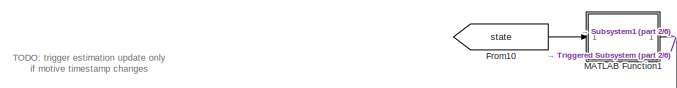
[diagram: root canvas - part 1/6, top center region]
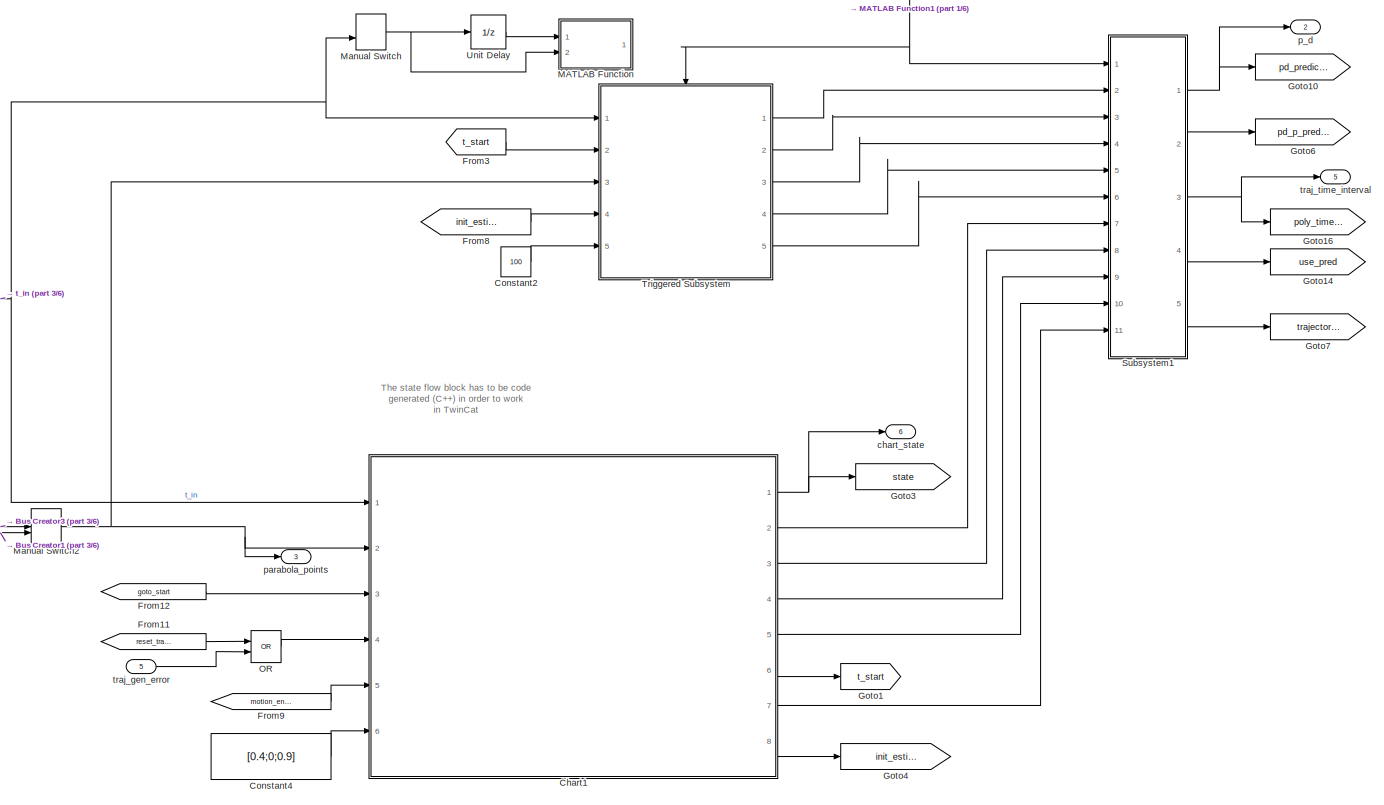
[diagram: root canvas - part 2/6, top center region]
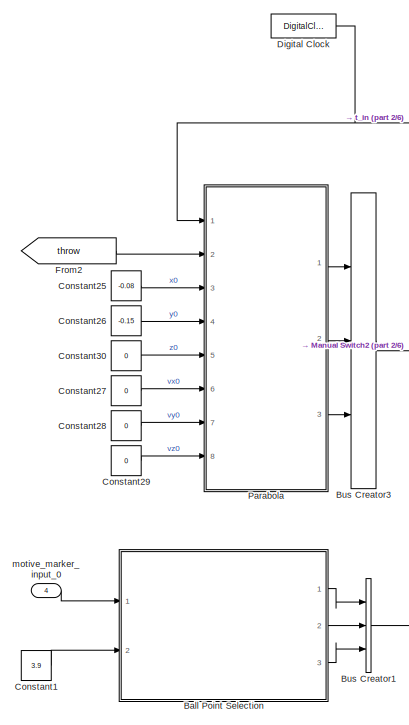
[diagram: root canvas - part 3/6, middle left region]
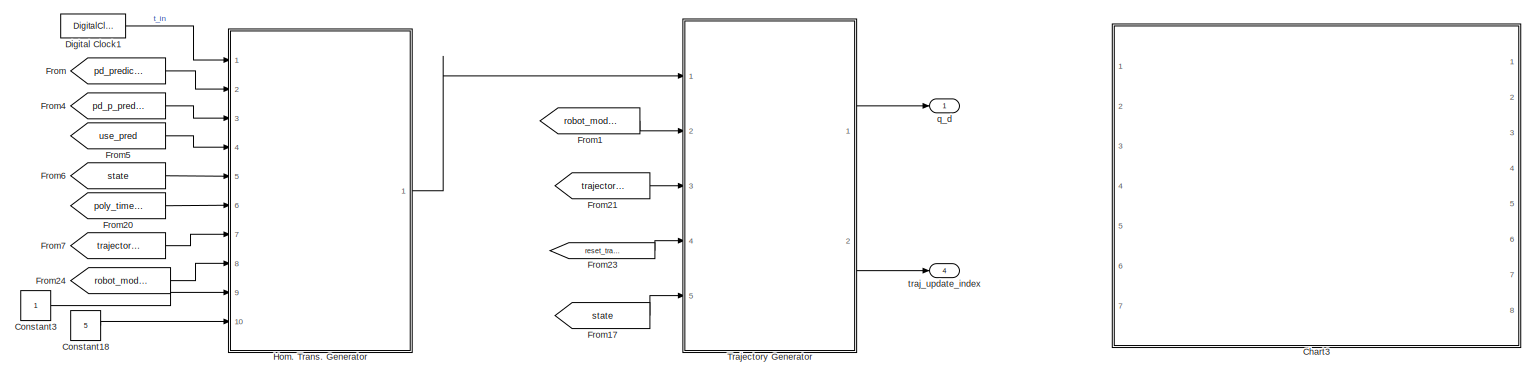
[diagram: root canvas - part 4/6, full width, middle band]
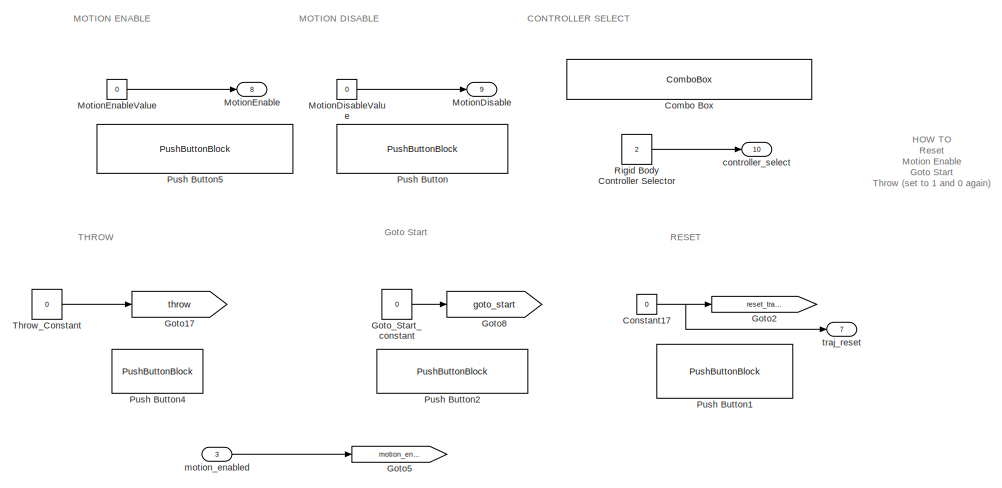
[diagram: root canvas - part 5/6, bottom right region]
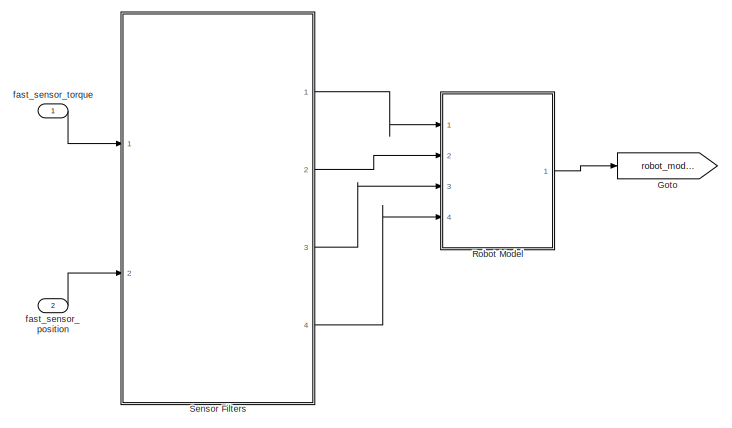
[diagram: root canvas - part 6/6, bottom left region]
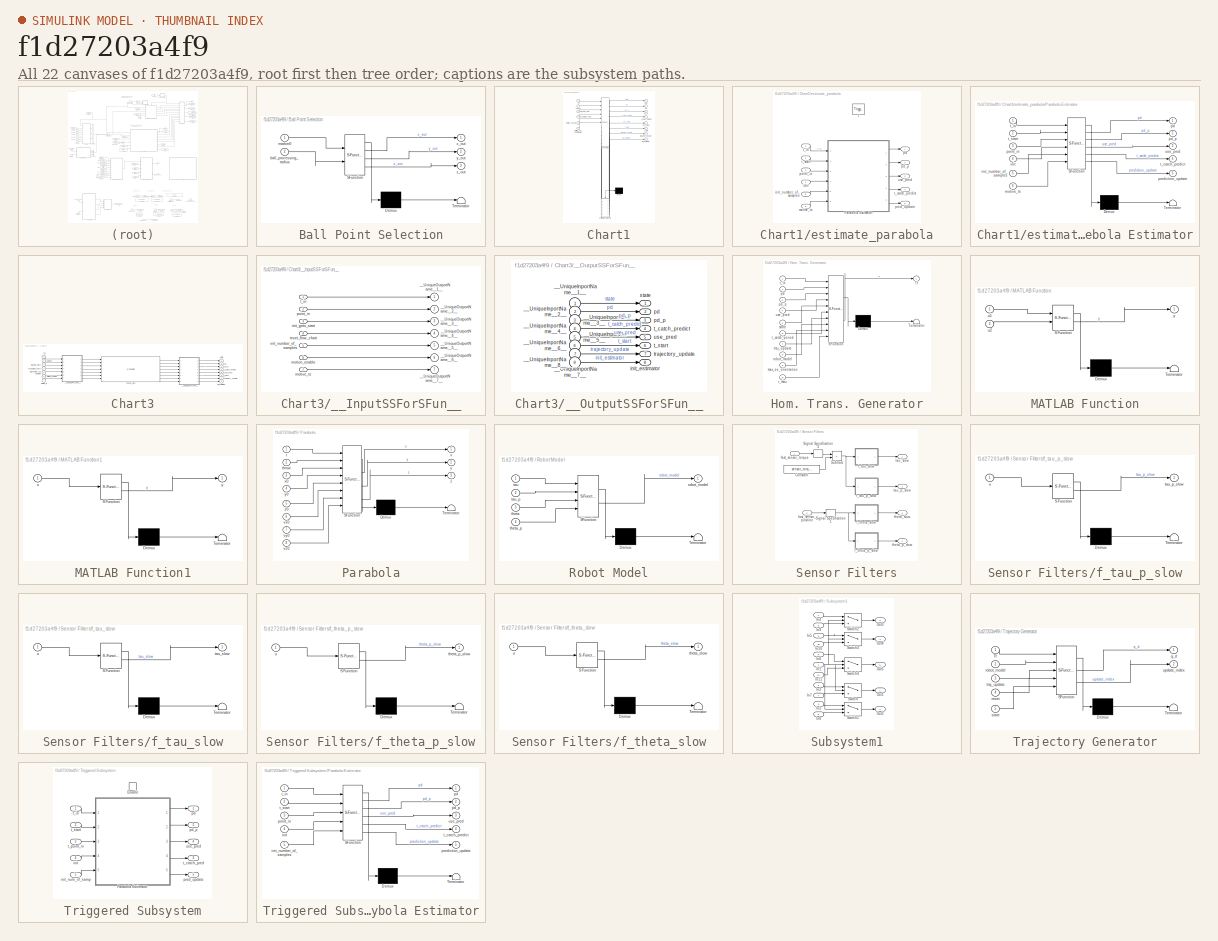
[diagram: thumbnail index - all 22 canvases of the model, root first then tree order]
MODEL slx_f1d27203a4f9
KIND model
CONFIG AbsTol = auto
CONFIG EnableMultiTasking = off
CONFIG FixedStep = param_controller.T_a
CONFIG InitFcn = iiwa_joint_trajectoryfollowingcontrol_rigid_parameters;
CONFIG MaxStep = auto
CONFIG MinStep = auto
CONFIG RelTol = 1e-3
CONFIG SampleTimeConstraint = Unconstrained
CONFIG Solver = FixedStepAuto
CONFIG SolverName = FixedStepAuto
CONFIG StartTime = 0.0
CONFIG StopTime = 10.0
BLOCK [SubSystem] Ball Point Selection
  ErrorFcn = Stateflow.Translate.translate
  PermitHierarchicalResolution = ExplicitOnly
  Ports = [2, 3]
  RequestExecContextInheritance = off
  SFBlockType = MATLAB Function
  TreatAsAtomicUnit = on
BLOCK [Demux] Ball Point Selection/ Demux 
  Outputs = 1
  Ports = [1, 1]
BLOCK [S-Function] Ball Point Selection/ SFunction 
  EnableBusSupport = on
  FunctionName = sf_sfun
  PortCounts = [2 4]
  Ports = [2, 4]
  SFcnIsStateOwnerBlock = off
  SFunctionDeploymentMode = off
  Tag = Stateflow S-Function 2
BLOCK [Terminator] Ball Point Selection/ Terminator 
BLOCK [Inport] Ball Point Selection/ball_processing_radius
  Port = 2
BLOCK [Inport] Ball Point Selection/marker0
BLOCK [Outport] Ball Point Selection/x_out
  VectorParamsAs1DForOutWhenUnconnected = off
BLOCK [Outport] Ball Point Selection/y_out
  Port = 2
  VectorParamsAs1DForOutWhenUnconnected = off
BLOCK [Outport] Ball Point Selection/z_out
  Port = 3
  VectorParamsAs1DForOutWhenUnconnected = off
BLOCK [BusCreator] Bus Creator1
  DisplayOption = bar
  InheritFromInputs = on
  Inputs = 3
  Ports = [3, 1]
BLOCK [BusCreator] Bus Creator3
  DisplayOption = bar
  InheritFromInputs = on
  Inputs = 3
  Ports = [3, 1]
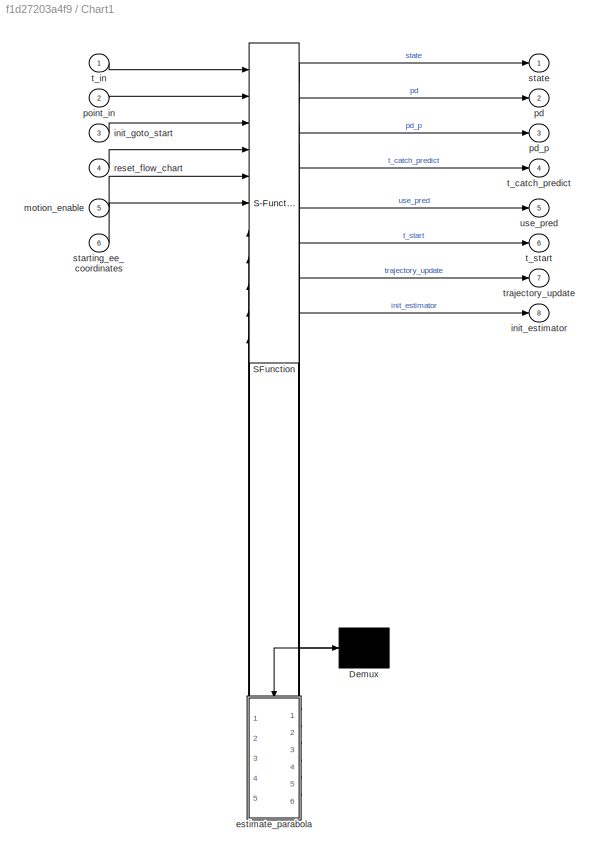
BLOCK [SubSystem] Chart1
  ErrorFcn = Stateflow.Translate.translate
  PermitHierarchicalResolution = ExplicitOnly
  Ports = [6, 8]
  RequestExecContextInheritance = off
  SFBlockType = Chart
  TreatAsAtomicUnit = on
BLOCK [Demux] Chart1/ Demux 
  Outputs = 1
  Ports = [1, 1]
BLOCK [S-Function] Chart1/ SFunction 
  EnableBusSupport = on
  FunctionName = sf_sfun
  Parameters = positions
  PortCounts = [11 15]
  Ports = [11, 15]
  SFcnIsStateOwnerBlock = off
  SFunctionDeploymentMode = off
  Tag = Stateflow S-Function 10
BLOCK [SubSystem] Chart1/estimate_parabola
  Commented = on
  Ports = [6, 5, 0, 1]
  PreDeleteFcn = Stateflow.SLINSF.SimulinkMan.removePreDeleteFcn
  RequestExecContextInheritance = off
  UndoDeleteFcn = Stateflow.SLINSF.SimulinkMan.restorePreDeleteFcn
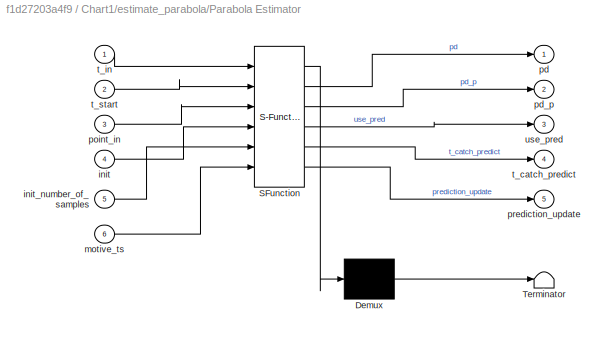
BLOCK [SubSystem] Chart1/estimate_parabola/Parabola Estimator
  ErrorFcn = Stateflow.Translate.translate
  PermitHierarchicalResolution = ExplicitOnly
  Ports = [6, 5]
  RequestExecContextInheritance = off
  SFBlockType = MATLAB Function
  TreatAsAtomicUnit = on
BLOCK [Demux] Chart1/estimate_parabola/Parabola Estimator/ Demux 
  Outputs = 1
  Ports = [1, 1]
BLOCK [S-Function] Chart1/estimate_parabola/Parabola Estimator/ SFunction 
  EnableBusSupport = off
  FunctionName = sf_sfun
  Parameters = estimator_init_struct,height_of_catch,timing
  PortCounts = [6 6]
  Ports = [6, 6]
  SFcnIsStateOwnerBlock = off
  SFunctionDeploymentMode = off
  Tag = Stateflow S-Function 11
BLOCK [Terminator] Chart1/estimate_parabola/Parabola Estimator/ Terminator 
BLOCK [Inport] Chart1/estimate_parabola/Parabola Estimator/init
  Port = 4
BLOCK [Inport] Chart1/estimate_parabola/Parabola Estimator/init_number_of_samples
  Port = 5
BLOCK [Inport] Chart1/estimate_parabola/Parabola Estimator/motive_ts
  Port = 6
BLOCK [Outport] Chart1/estimate_parabola/Parabola Estimator/pd
  VectorParamsAs1DForOutWhenUnconnected = off
BLOCK [Outport] Chart1/estimate_parabola/Parabola Estimator/pd_p
  Port = 2
  VectorParamsAs1DForOutWhenUnconnected = off
BLOCK [Inport] Chart1/estimate_parabola/Parabola Estimator/point_in
  Port = 3
BLOCK [Outport] Chart1/estimate_parabola/Parabola Estimator/prediction_update
  Port = 5
BLOCK [Outport] Chart1/estimate_parabola/Parabola Estimator/t_catch_predict
  Port = 4
  VectorParamsAs1DForOutWhenUnconnected = off
BLOCK [Inport] Chart1/estimate_parabola/Parabola Estimator/t_in
BLOCK [Inport] Chart1/estimate_parabola/Parabola Estimator/t_start
  Port = 2
BLOCK [Outport] Chart1/estimate_parabola/Parabola Estimator/use_pred
  Port = 3
  VectorParamsAs1DForOutWhenUnconnected = off
BLOCK [TriggerPort] Chart1/estimate_parabola/f
  CopyFcn = Stateflow.SLINSF.SimulinkMan.removeBlockPreDeleteFcn
  Ports = []
  PreDeleteFcn = Stateflow.SLINSF.SimulinkMan.unsafePredeleteFcn
  StatesWhenEnabling = held
  TriggerType = function-call
  VariantControl = (inherit)
BLOCK [Inport] Chart1/estimate_parabola/init
  OutDataTypeStr = double
  Port = 4
  PortDimensions = 1
  SignalType = real
  VarSizeSig = No
BLOCK [Inport] Chart1/estimate_parabola/init_number_of_samples
  OutDataTypeStr = double
  Port = 5
  PortDimensions = 1
  SignalType = real
  VarSizeSig = No
BLOCK [Inport] Chart1/estimate_parabola/motive_ts
  OutDataTypeStr = double
  Port = 6
  PortDimensions = 1
  SignalType = real
  VarSizeSig = No
BLOCK [Outport] Chart1/estimate_parabola/pd
  PortDimensions = 3
BLOCK [Outport] Chart1/estimate_parabola/pd_p
  Port = 2
  PortDimensions = 3
BLOCK [Inport] Chart1/estimate_parabola/point_in
  OutDataTypeStr = double
  Port = 3
  PortDimensions = 3
  SignalType = real
  VarSizeSig = No
BLOCK [Outport] Chart1/estimate_parabola/pred_update
  Port = 5
BLOCK [Outport] Chart1/estimate_parabola/t_catch_predict
  Port = 4
  PortDimensions = [1,2]
BLOCK [Inport] Chart1/estimate_parabola/t_in
  OutDataTypeStr = double
  PortDimensions = 1
  SignalType = real
  VarSizeSig = No
BLOCK [Inport] Chart1/estimate_parabola/t_start
  OutDataTypeStr = double
  Port = 2
  PortDimensions = 1
  SignalType = real
  VarSizeSig = No
BLOCK [Outport] Chart1/estimate_parabola/use_pred
  Port = 3
  PortDimensions = 1
BLOCK [Outport] Chart1/init_estimator
  Port = 8
  VectorParamsAs1DForOutWhenUnconnected = off
BLOCK [Inport] Chart1/init_goto_start
  Port = 3
BLOCK [Inport] Chart1/motion_enable
  Port = 5
BLOCK [Outport] Chart1/pd
  Port = 2
BLOCK [Outport] Chart1/pd_p
  Port = 3
BLOCK [Inport] Chart1/point_in
  Port = 2
BLOCK [Inport] Chart1/reset_flow_chart
  Port = 4
BLOCK [Inport] Chart1/starting_ee_coordinates
  Port = 6
BLOCK [Outport] Chart1/state
BLOCK [Outport] Chart1/t_catch_predict
  Port = 4
BLOCK [Inport] Chart1/t_in
BLOCK [Outport] Chart1/t_start
  Port = 6
BLOCK [Outport] Chart1/trajectory_update
  Port = 7
BLOCK [Outport] Chart1/use_pred
  Port = 5
BLOCK [SubSystem] Chart3
  Commented = on
  Ports = [7, 8]
  RequestExecContextInheritance = off
BLOCK [S-Function] Chart3/Chart2_sfcn
  CopyFcn = if ~strcmp(get_param(gcb,'Linkstatus'),'none') && ...\n~strcmp(get_param(gcb,'Linkstatus'),'implicit')      \n  set_param(gcb,'LinkStatus','none');                \nend
  EnableBusSupport = off
  FunctionName = Chart2_sf
  Ports = [7, 8]
  SFcnIsStateOwnerBlock = off
  SFunctionDeploymentMode = off
BLOCK [SubSystem] Chart3/__InputSSForSFun__
  PermitHierarchicalResolution = ExplicitOnly
  Ports = [7, 7]
  RequestExecContextInheritance = off
BLOCK [Outport] Chart3/__InputSSForSFun__/__UniqueOutportName__1__
  VectorParamsAs1DForOutWhenUnconnected = off
BLOCK [Outport] Chart3/__InputSSForSFun__/__UniqueOutportName__2__
  Port = 2
  VectorParamsAs1DForOutWhenUnconnected = off
BLOCK [Outport] Chart3/__InputSSForSFun__/__UniqueOutportName__3__
  Port = 3
  VectorParamsAs1DForOutWhenUnconnected = off
BLOCK [Outport] Chart3/__InputSSForSFun__/__UniqueOutportName__4__
  Port = 4
  VectorParamsAs1DForOutWhenUnconnected = off
BLOCK [Outport] Chart3/__InputSSForSFun__/__UniqueOutportName__5__
  Port = 5
  VectorParamsAs1DForOutWhenUnconnected = off
BLOCK [Outport] Chart3/__InputSSForSFun__/__UniqueOutportName__6__
  Port = 6
  VectorParamsAs1DForOutWhenUnconnected = off
BLOCK [Outport] Chart3/__InputSSForSFun__/__UniqueOutportName__7__
  Port = 7
  VectorParamsAs1DForOutWhenUnconnected = off
BLOCK [Inport] Chart3/__InputSSForSFun__/init_goto_start
  Port = 3
BLOCK [Inport] Chart3/__InputSSForSFun__/init_number_of_samples
  Port = 5
BLOCK [Inport] Chart3/__InputSSForSFun__/motion_enable
  Port = 6
BLOCK [Inport] Chart3/__InputSSForSFun__/motive_ts
  Port = 7
BLOCK [Inport] Chart3/__InputSSForSFun__/point_in
  Port = 2
BLOCK [Inport] Chart3/__InputSSForSFun__/reset_flow_chart
  Port = 4
BLOCK [Inport] Chart3/__InputSSForSFun__/t_in
BLOCK [SubSystem] Chart3/__OutputSSForSFun__
  PermitHierarchicalResolution = ExplicitOnly
  Ports = [8, 8]
  RequestExecContextInheritance = off
BLOCK [Inport] Chart3/__OutputSSForSFun__/__UniqueInportName__1__
BLOCK [Inport] Chart3/__OutputSSForSFun__/__UniqueInportName__2__
  Port = 2
BLOCK [Inport] Chart3/__OutputSSForSFun__/__UniqueInportName__3__
  Port = 3
BLOCK [Inport] Chart3/__OutputSSForSFun__/__UniqueInportName__4__
  Port = 4
BLOCK [Inport] Chart3/__OutputSSForSFun__/__UniqueInportName__5__
  Port = 5
BLOCK [Inport] Chart3/__OutputSSForSFun__/__UniqueInportName__6__
  Port = 6
BLOCK [Inport] Chart3/__OutputSSForSFun__/__UniqueInportName__7__
  Port = 7
BLOCK [Inport] Chart3/__OutputSSForSFun__/__UniqueInportName__8__
  Port = 8
BLOCK [Outport] Chart3/__OutputSSForSFun__/init_estimator
  Port = 8
  VectorParamsAs1DForOutWhenUnconnected = off
BLOCK [Outport] Chart3/__OutputSSForSFun__/pd
  Port = 2
BLOCK [Outport] Chart3/__OutputSSForSFun__/pd_p
  Port = 3
BLOCK [Outport] Chart3/__OutputSSForSFun__/state
BLOCK [Outport] Chart3/__OutputSSForSFun__/t_catch_predict
  Port = 4
BLOCK [Outport] Chart3/__OutputSSForSFun__/t_start
  Port = 6
BLOCK [Outport] Chart3/__OutputSSForSFun__/trajectory_update
  Port = 7
BLOCK [Outport] Chart3/__OutputSSForSFun__/use_pred
  Port = 5
BLOCK [Outport] Chart3/init_estimator
  Port = 8
  VectorParamsAs1DForOutWhenUnconnected = off
BLOCK [Inport] Chart3/init_goto_start
  Port = 3
BLOCK [Inport] Chart3/init_number_of_samples
  Port = 5
BLOCK [Inport] Chart3/motion_enable
  Port = 6
BLOCK [Inport] Chart3/motive_ts
  Port = 7
BLOCK [Outport] Chart3/pd
  Port = 2
BLOCK [Outport] Chart3/pd_p
  Port = 3
BLOCK [Inport] Chart3/point_in
  Port = 2
BLOCK [Inport] Chart3/reset_flow_chart
  Port = 4
BLOCK [Outport] Chart3/state
BLOCK [Outport] Chart3/t_catch_predict
  Port = 4
BLOCK [Inport] Chart3/t_in
BLOCK [Outport] Chart3/t_start
  Port = 6
BLOCK [Outport] Chart3/trajectory_update
  Port = 7
BLOCK [Outport] Chart3/use_pred
  Port = 5
BLOCK [ComboBox] Combo Box
  SelectedLabel = 2: Joint-based E/A Linearization
BLOCK [Constant] Constant1
  Value = 3.9
BLOCK [Constant] Constant17
  Value = 0
BLOCK [Constant] Constant18
  Value = 5
BLOCK [Constant] Constant2
  Value = 100
BLOCK [Constant] Constant25
  Value = -0.08
BLOCK [Constant] Constant26
  Value = -0.15
BLOCK [Constant] Constant27
  Value = 0
BLOCK [Constant] Constant28
  Value = 0
BLOCK [Constant] Constant29
  Value = 0
BLOCK [Constant] Constant3
BLOCK [Constant] Constant30
  Value = 0
BLOCK [Constant] Constant4
  Value = [0.4;0;0.9]
BLOCK [DigitalClock] Digital Clock
  SampleTime = timing.T_optitrack
BLOCK [DigitalClock] Digital Clock1
  SampleTime = timing.T_optiTask
BLOCK [From] From
  GotoTag = pd_predicted
BLOCK [From] From1
  GotoTag = robot_model
BLOCK [From] From10
  GotoTag = state
BLOCK [From] From11
  GotoTag = reset_trajectory
BLOCK [From] From12
  GotoTag = goto_start
BLOCK [From] From17
  GotoTag = state
BLOCK [From] From2
  GotoTag = throw
BLOCK [From] From20
  GotoTag = poly_timepoints
BLOCK [From] From21
  GotoTag = trajectory_update
BLOCK [From] From23
  GotoTag = reset_trajectory
BLOCK [From] From24
  GotoTag = robot_model
BLOCK [From] From3
  GotoTag = t_start
BLOCK [From] From4
  GotoTag = pd_p_predicted
BLOCK [From] From5
  GotoTag = use_pred
BLOCK [From] From6
  GotoTag = state
BLOCK [From] From7
  GotoTag = trajectory_update
BLOCK [From] From8
  GotoTag = init_estimator
BLOCK [From] From9
  GotoTag = motion_enabled
BLOCK [Goto] Goto
  GotoTag = robot_model
BLOCK [Goto] Goto1
  GotoTag = t_start
BLOCK [Goto] Goto10
  GotoTag = pd_predicted
BLOCK [Goto] Goto14
  GotoTag = use_pred
BLOCK [Goto] Goto16
  GotoTag = poly_timepoints
BLOCK [Goto] Goto17
  GotoTag = throw
BLOCK [Goto] Goto2
  GotoTag = reset_trajectory
BLOCK [Goto] Goto3
  GotoTag = state
BLOCK [Goto] Goto4
  GotoTag = init_estimator
BLOCK [Goto] Goto5
  GotoTag = motion_enabled
BLOCK [Goto] Goto6
  GotoTag = pd_p_predicted
BLOCK [Goto] Goto7
  GotoTag = trajectory_update
BLOCK [Goto] Goto8
  GotoTag = goto_start
BLOCK [Constant] Goto_Start_constant
  Value = 0
BLOCK [SubSystem] Hom. Trans. Generator
  ErrorFcn = Stateflow.Translate.translate
  PermitHierarchicalResolution = ExplicitOnly
  Ports = [10, 1]
  RequestExecContextInheritance = off
  SFBlockType = MATLAB Function
  TreatAsAtomicUnit = on
BLOCK [Demux] Hom. Trans. Generator/ Demux 
  Outputs = 1
  Ports = [1, 1]
BLOCK [S-Function] Hom. Trans. Generator/ SFunction 
  EnableBusSupport = on
  FunctionName = sf_sfun
  PortCounts = [10 2]
  Ports = [10, 2]
  SFcnIsStateOwnerBlock = off
  SFunctionDeploymentMode = off
  Tag = Stateflow S-Function 8
BLOCK [Terminator] Hom. Trans. Generator/ Terminator 
BLOCK [Outport] Hom. Trans. Generator/Tf
BLOCK [Inport] Hom. Trans. Generator/max_ee_orientation
  Port = 9
BLOCK [Inport] Hom. Trans. Generator/pd
  Port = 2
BLOCK [Inport] Hom. Trans. Generator/pd_p
  Port = 3
BLOCK [Inport] Hom. Trans. Generator/r_max
  Port = 10
BLOCK [Inport] Hom. Trans. Generator/robot_model
  Port = 8
BLOCK [Inport] Hom. Trans. Generator/state
  Port = 5
BLOCK [Inport] Hom. Trans. Generator/t_catch_period
  Port = 6
BLOCK [Inport] Hom. Trans. Generator/t_in
BLOCK [Inport] Hom. Trans. Generator/traj_update
  Port = 7
BLOCK [Inport] Hom. Trans. Generator/use_pred
  Port = 4
BLOCK [SubSystem] MATLAB Function
  Commented = on
  ErrorFcn = Stateflow.Translate.translate
  PermitHierarchicalResolution = ExplicitOnly
  Ports = [2, 1]
  RequestExecContextInheritance = off
  SFBlockType = MATLAB Function
  TreatAsAtomicUnit = on
BLOCK [Demux] MATLAB Function/ Demux 
  Outputs = 1
  Ports = [1, 1]
BLOCK [S-Function] MATLAB Function/ SFunction 
  EnableBusSupport = on
  FunctionName = sf_sfun
  PortCounts = [2 2]
  Ports = [2, 2]
  SFcnIsStateOwnerBlock = off
  SFunctionDeploymentMode = off
  Tag = Stateflow S-Function 5
BLOCK [Terminator] MATLAB Function/ Terminator 
BLOCK [Inport] MATLAB Function/u1
BLOCK [Inport] MATLAB Function/u2
  Port = 2
BLOCK [Outport] MATLAB Function/y
  VectorParamsAs1DForOutWhenUnconnected = off
BLOCK [SubSystem] MATLAB Function1
  ErrorFcn = Stateflow.Translate.translate
  PermitHierarchicalResolution = ExplicitOnly
  Ports = [1, 1]
  RequestExecContextInheritance = off
  SFBlockType = MATLAB Function
  TreatAsAtomicUnit = on
BLOCK [Demux] MATLAB Function1/ Demux 
  Outputs = 1
  Ports = [1, 1]
BLOCK [S-Function] MATLAB Function1/ SFunction 
  EnableBusSupport = on
  FunctionName = sf_sfun
  PortCounts = [1 2]
  Ports = [1, 2]
  SFcnIsStateOwnerBlock = off
  SFunctionDeploymentMode = off
  Tag = Stateflow S-Function 9
BLOCK [Terminator] MATLAB Function1/ Terminator 
BLOCK [Inport] MATLAB Function1/u
BLOCK [Outport] MATLAB Function1/y
  VectorParamsAs1DForOutWhenUnconnected = off
BLOCK [ManualSwitch] Manual Switch
  Commented = on
BLOCK [ManualSwitch] Manual Switch2
BLOCK [Outport] MotionDisable
  Port = 9
  VectorParamsAs1DForOutWhenUnconnected = off
BLOCK [Constant] MotionDisableValue
  Value = 0
BLOCK [Outport] MotionEnable
  Port = 8
  VectorParamsAs1DForOutWhenUnconnected = off
BLOCK [Constant] MotionEnableValue
  Value = 0
BLOCK [Logic] OR
  AllPortsSameDT = off
  IconShape = distinctive
  Operator = OR
  OutDataTypeStr = boolean
  Ports = [2, 1]
BLOCK [SubSystem] Parabola
  ErrorFcn = Stateflow.Translate.translate
  PermitHierarchicalResolution = ExplicitOnly
  Ports = [8, 3]
  RequestExecContextInheritance = off
  SFBlockType = MATLAB Function
  TreatAsAtomicUnit = on
BLOCK [Demux] Parabola/ Demux 
  Outputs = 1
  Ports = [1, 1]
BLOCK [S-Function] Parabola/ SFunction 
  EnableBusSupport = on
  FunctionName = sf_sfun
  Parameters = optitrack_data,param_controller,timing
  PortCounts = [8 4]
  Ports = [8, 4]
  SFcnIsStateOwnerBlock = off
  SFunctionDeploymentMode = off
  Tag = Stateflow S-Function 1
BLOCK [Terminator] Parabola/ Terminator 
BLOCK [Inport] Parabola/t
BLOCK [Inport] Parabola/throw
  Port = 2
BLOCK [Inport] Parabola/vx0
  Port = 6
BLOCK [Inport] Parabola/vy0
  Port = 7
BLOCK [Inport] Parabola/vz0
  Port = 8
BLOCK [Outport] Parabola/x
  VectorParamsAs1DForOutWhenUnconnected = off
BLOCK [Inport] Parabola/x0
  Port = 3
BLOCK [Outport] Parabola/y
  Port = 2
  VectorParamsAs1DForOutWhenUnconnected = off
BLOCK [Inport] Parabola/y0
  Port = 4
BLOCK [Outport] Parabola/z
  Port = 3
BLOCK [Inport] Parabola/z0
  Port = 5
BLOCK [PushButtonBlock] Push Button
  ButtonText = Motion disable
BLOCK [PushButtonBlock] Push Button1
  ButtonText = Reset Trajectory
BLOCK [PushButtonBlock] Push Button2
  ButtonText = Goto Start
BLOCK [PushButtonBlock] Push Button4
  ButtonText = Throw
BLOCK [PushButtonBlock] Push Button5
  ButtonText = Motion enable
BLOCK [Constant] Rigid Body Controller Selector
  OutDataTypeStr = uint32
  Value = 2
BLOCK [SubSystem] Robot Model
  ErrorFcn = Stateflow.Translate.translate
  PermitHierarchicalResolution = ExplicitOnly
  Ports = [4, 1]
  RequestExecContextInheritance = off
  SFBlockType = MATLAB Function
  TreatAsAtomicUnit = on
BLOCK [Demux] Robot Model/ Demux 
  Outputs = 1
  Ports = [1, 1]
BLOCK [S-Function] Robot Model/ SFunction 
  EnableBusSupport = on
  FunctionName = sf_sfun
  Parameters = param_controller,param_robot
  PortCounts = [4 2]
  Ports = [4, 2]
  SFcnIsStateOwnerBlock = off
  SFunctionDeploymentMode = off
  Tag = Stateflow S-Function 16
BLOCK [Terminator] Robot Model/ Terminator 
BLOCK [Outport] Robot Model/robot_model
  VectorParamsAs1DForOutWhenUnconnected = off
BLOCK [Inport] Robot Model/tau
BLOCK [Inport] Robot Model/tau_p
  Port = 2
BLOCK [Inport] Robot Model/theta
  Port = 3
BLOCK [Inport] Robot Model/theta_p
  Port = 4
BLOCK [SubSystem] Sensor Filters
  Ports = [2, 4]
  RequestExecContextInheritance = off
BLOCK [Constant] Sensor Filters/Constant
  Value = sensor_torque_offset
BLOCK [SignalSpecification] Sensor Filters/Signal Specification1
  Dimensions = 7
BLOCK [SignalSpecification] Sensor Filters/Signal Specification3
  Dimensions = 7
BLOCK [Sum] Sensor Filters/Subtract
  IconShape = rectangular
  Inputs = +-
  Ports = [2, 1]
BLOCK [SubSystem] Sensor Filters/f_tau_p_slow
  ErrorFcn = Stateflow.Translate.translate
  PermitHierarchicalResolution = ExplicitOnly
  Ports = [1, 1]
  RequestExecContextInheritance = off
  SFBlockType = MATLAB Function
  TreatAsAtomicUnit = on
BLOCK [Demux] Sensor Filters/f_tau_p_slow/ Demux 
  Outputs = 1
  Ports = [1, 1]
BLOCK [S-Function] Sensor Filters/f_tau_p_slow/ SFunction 
  EnableBusSupport = on
  FunctionName = sf_sfun
  Parameters = filter_tau_p_slow_T_1,param_controller
  PortCounts = [1 2]
  Ports = [1, 2]
  SFcnIsStateOwnerBlock = off
  SFunctionDeploymentMode = off
  Tag = Stateflow S-Function 22
BLOCK [Terminator] Sensor Filters/f_tau_p_slow/ Terminator 
BLOCK [Outport] Sensor Filters/f_tau_p_slow/tau_p_slow
  VectorParamsAs1DForOutWhenUnconnected = off
BLOCK [Inport] Sensor Filters/f_tau_p_slow/u
BLOCK [SubSystem] Sensor Filters/f_tau_slow
  ErrorFcn = Stateflow.Translate.translate
  PermitHierarchicalResolution = ExplicitOnly
  Ports = [1, 1]
  RequestExecContextInheritance = off
  SFBlockType = MATLAB Function
  TreatAsAtomicUnit = on
BLOCK [Demux] Sensor Filters/f_tau_slow/ Demux 
  Outputs = 1
  Ports = [1, 1]
BLOCK [S-Function] Sensor Filters/f_tau_slow/ SFunction 
  EnableBusSupport = on
  FunctionName = sf_sfun
  Parameters = filter_tau_slow_T_1,param_controller
  PortCounts = [1 2]
  Ports = [1, 2]
  SFcnIsStateOwnerBlock = off
  SFunctionDeploymentMode = off
  Tag = Stateflow S-Function 12
BLOCK [Terminator] Sensor Filters/f_tau_slow/ Terminator 
BLOCK [Outport] Sensor Filters/f_tau_slow/tau_slow
  VectorParamsAs1DForOutWhenUnconnected = off
BLOCK [Inport] Sensor Filters/f_tau_slow/u
BLOCK [SubSystem] Sensor Filters/f_theta_p_slow
  ErrorFcn = Stateflow.Translate.translate
  PermitHierarchicalResolution = ExplicitOnly
  Ports = [1, 1]
  RequestExecContextInheritance = off
  SFBlockType = MATLAB Function
  TreatAsAtomicUnit = on
BLOCK [Demux] Sensor Filters/f_theta_p_slow/ Demux 
  Outputs = 1
  Ports = [1, 1]
BLOCK [S-Function] Sensor Filters/f_theta_p_slow/ SFunction 
  EnableBusSupport = on
  FunctionName = sf_sfun
  Parameters = filter_theta_p_slow_T_1,param_controller
  PortCounts = [1 2]
  Ports = [1, 2]
  SFcnIsStateOwnerBlock = off
  SFunctionDeploymentMode = off
  Tag = Stateflow S-Function 23
BLOCK [Terminator] Sensor Filters/f_theta_p_slow/ Terminator 
BLOCK [Outport] Sensor Filters/f_theta_p_slow/theta_p_slow
  VectorParamsAs1DForOutWhenUnconnected = off
BLOCK [Inport] Sensor Filters/f_theta_p_slow/u
BLOCK [SubSystem] Sensor Filters/f_theta_slow
  ErrorFcn = Stateflow.Translate.translate
  PermitHierarchicalResolution = ExplicitOnly
  Ports = [1, 1]
  RequestExecContextInheritance = off
  SFBlockType = MATLAB Function
  TreatAsAtomicUnit = on
BLOCK [Demux] Sensor Filters/f_theta_slow/ Demux 
  Outputs = 1
  Ports = [1, 1]
BLOCK [S-Function] Sensor Filters/f_theta_slow/ SFunction 
  EnableBusSupport = on
  FunctionName = sf_sfun
  Parameters = filter_theta_slow_T_1,param_controller
  PortCounts = [1 2]
  Ports = [1, 2]
  SFcnIsStateOwnerBlock = off
  SFunctionDeploymentMode = off
  Tag = Stateflow S-Function 21
BLOCK [Terminator] Sensor Filters/f_theta_slow/ Terminator 
BLOCK [Outport] Sensor Filters/f_theta_slow/theta_slow
  VectorParamsAs1DForOutWhenUnconnected = off
BLOCK [Inport] Sensor Filters/f_theta_slow/u
BLOCK [Inport] Sensor Filters/fast_sensor_position
  Port = 2
BLOCK [Inport] Sensor Filters/fast_sensor_torque
BLOCK [Outport] Sensor Filters/tau_p_slow
  Port = 2
  VectorParamsAs1DForOutWhenUnconnected = off
BLOCK [Outport] Sensor Filters/tau_slow
  VectorParamsAs1DForOutWhenUnconnected = off
BLOCK [Outport] Sensor Filters/theta_p_slow
  Port = 4
  VectorParamsAs1DForOutWhenUnconnected = off
BLOCK [Outport] Sensor Filters/theta_slow
  Port = 3
  VectorParamsAs1DForOutWhenUnconnected = off
BLOCK [SubSystem] Subsystem1
  Ports = [11, 5]
  RequestExecContextInheritance = off
BLOCK [Inport] Subsystem1/In1
BLOCK [Inport] Subsystem1/In10
  Port = 10
BLOCK [Inport] Subsystem1/In11
  Port = 11
BLOCK [Inport] Subsystem1/In2
  Port = 2
BLOCK [Inport] Subsystem1/In3
  Port = 3
BLOCK [Inport] Subsystem1/In4
  Port = 4
BLOCK [Inport] Subsystem1/In5
  Port = 5
BLOCK [Inport] Subsystem1/In6
  Port = 6
BLOCK [Inport] Subsystem1/In7
  Port = 7
BLOCK [Inport] Subsystem1/In8
  Port = 8
BLOCK [Inport] Subsystem1/In9
  Port = 9
BLOCK [Outport] Subsystem1/Out1
BLOCK [Outport] Subsystem1/Out2
  Port = 2
BLOCK [Outport] Subsystem1/Out3
  Port = 3
BLOCK [Outport] Subsystem1/Out4
  Port = 4
BLOCK [Outport] Subsystem1/Out5
  Port = 5
BLOCK [Switch] Subsystem1/Switch
  InputSameDT = off
  SaturateOnIntegerOverflow = off
BLOCK [Switch] Subsystem1/Switch1
  SaturateOnIntegerOverflow = off
BLOCK [Switch] Subsystem1/Switch2
  InputSameDT = off
  SaturateOnIntegerOverflow = off
BLOCK [Switch] Subsystem1/Switch3
  InputSameDT = off
  SaturateOnIntegerOverflow = off
BLOCK [Switch] Subsystem1/Switch4
  InputSameDT = off
  SaturateOnIntegerOverflow = off
BLOCK [Constant] Throw_Constant
  Value = 0
BLOCK [SubSystem] Trajectory Generator
  ErrorFcn = Stateflow.Translate.translate
  PermitHierarchicalResolution = ExplicitOnly
  Ports = [5, 2]
  RequestExecContextInheritance = off
  SFBlockType = MATLAB Function
  TreatAsAtomicUnit = on
BLOCK [Demux] Trajectory Generator/ Demux 
  Outputs = 1
  Ports = [1, 1]
BLOCK [S-Function] Trajectory Generator/ SFunction 
  EnableBusSupport = on
  FunctionName = sf_sfun
  Parameters = param_robot,positions
  PortCounts = [5 3]
  Ports = [5, 3]
  SFcnIsStateOwnerBlock = off
  SFunctionDeploymentMode = off
  Tag = Stateflow S-Function 7
BLOCK [Terminator] Trajectory Generator/ Terminator 
BLOCK [Inport] Trajectory Generator/Tf
BLOCK [Outport] Trajectory Generator/q_d
  VectorParamsAs1DForOutWhenUnconnected = off
BLOCK [Inport] Trajectory Generator/reset
  Port = 4
BLOCK [Inport] Trajectory Generator/robot_model
  Port = 2
BLOCK [Inport] Trajectory Generator/state
  Port = 5
BLOCK [Inport] Trajectory Generator/traj_update
  Port = 3
BLOCK [Outport] Trajectory Generator/update_index
  Port = 2
  VectorParamsAs1DForOutWhenUnconnected = off
BLOCK [SubSystem] Triggered Subsystem
  Ports = [5, 5, 1]
  RequestExecContextInheritance = off
  TreatAsAtomicUnit = on
BLOCK [EnablePort] Triggered Subsystem/Enable
  Ports = []
BLOCK [SubSystem] Triggered Subsystem/Parabola Estimator
  ErrorFcn = Stateflow.Translate.translate
  PermitHierarchicalResolution = ExplicitOnly
  Ports = [5, 5]
  RequestExecContextInheritance = off
  SFBlockType = MATLAB Function
  TreatAsAtomicUnit = on
BLOCK [Demux] Triggered Subsystem/Parabola Estimator/ Demux 
  Outputs = 1
  Ports = [1, 1]
BLOCK [S-Function] Triggered Subsystem/Parabola Estimator/ SFunction 
  EnableBusSupport = on
  FunctionName = sf_sfun
  Parameters = estimator_init_struct,height_of_catch,timing
  PortCounts = [5 6]
  Ports = [5, 6]
  SFcnIsStateOwnerBlock = off
  SFunctionDeploymentMode = off
  Tag = Stateflow S-Function 6
BLOCK [Terminator] Triggered Subsystem/Parabola Estimator/ Terminator 
BLOCK [Inport] Triggered Subsystem/Parabola Estimator/init
  Port = 4
BLOCK [Inport] Triggered Subsystem/Parabola Estimator/init_number_of_samples
  Port = 5
BLOCK [Outport] Triggered Subsystem/Parabola Estimator/pd
  VectorParamsAs1DForOutWhenUnconnected = off
BLOCK [Outport] Triggered Subsystem/Parabola Estimator/pd_p
  Port = 2
  VectorParamsAs1DForOutWhenUnconnected = off
BLOCK [Inport] Triggered Subsystem/Parabola Estimator/point_in
  Port = 3
BLOCK [Outport] Triggered Subsystem/Parabola Estimator/prediction_update
  Port = 5
BLOCK [Outport] Triggered Subsystem/Parabola Estimator/t_catch_predict
  Port = 4
  VectorParamsAs1DForOutWhenUnconnected = off
BLOCK [Inport] Triggered Subsystem/Parabola Estimator/t_in
BLOCK [Inport] Triggered Subsystem/Parabola Estimator/t_start
  Port = 2
BLOCK [Outport] Triggered Subsystem/Parabola Estimator/use_pred
  Port = 3
  VectorParamsAs1DForOutWhenUnconnected = off
BLOCK [Inport] Triggered Subsystem/init
  Port = 4
BLOCK [Inport] Triggered Subsystem/init_num_of_samp
  Port = 5
BLOCK [Outport] Triggered Subsystem/pd
  VectorParamsAs1DForOutWhenUnconnected = off
BLOCK [Outport] Triggered Subsystem/pd_p
  Port = 2
  VectorParamsAs1DForOutWhenUnconnected = off
BLOCK [Outport] Triggered Subsystem/pred_update
  Port = 5
  VectorParamsAs1DForOutWhenUnconnected = off
BLOCK [Outport] Triggered Subsystem/t_catch_pred
  Port = 3
  VectorParamsAs1DForOutWhenUnconnected = off
BLOCK [Inport] Triggered Subsystem/t_in
BLOCK [Inport] Triggered Subsystem/t_point_in
  Port = 3
BLOCK [Inport] Triggered Subsystem/t_start
  Port = 2
BLOCK [Outport] Triggered Subsystem/use_pred
  Port = 4
  VectorParamsAs1DForOutWhenUnconnected = off
BLOCK [UnitDelay] Unit Delay
  Commented = on
  HasFrameUpgradeWarning = on
  SampleTime = -1
BLOCK [Outport] chart_state
  Port = 6
  VectorParamsAs1DForOutWhenUnconnected = off
BLOCK [Outport] controller_select
  Port = 10
  VectorParamsAs1DForOutWhenUnconnected = off
BLOCK [Inport] fast_sensor_position
  Port = 2
BLOCK [Inport] fast_sensor_torque
BLOCK [Inport] motion_enabled
  Port = 3
BLOCK [Inport] motive_marker_input_0
  OutDataTypeStr = Bus: Marker
  Port = 4
BLOCK [Outport] p_d
  Port = 2
BLOCK [Outport] parabola_points
  Port = 3
BLOCK [Outport] q_d
  PortDimensions = 7
BLOCK [Inport] traj_gen_error
  OutDataTypeStr = boolean
  Port = 5
BLOCK [Outport] traj_reset
  Port = 7
  VectorParamsAs1DForOutWhenUnconnected = off
BLOCK [Outport] traj_time_interval
  Port = 5
  VectorParamsAs1DForOutWhenUnconnected = off
BLOCK [Outport] traj_update_index
  Port = 4
  VectorParamsAs1DForOutWhenUnconnected = off
ANNOTATION (root): TODO: trigger estimation update only if motive timestamp changes
ANNOTATION (root): The state flow block has to be code generated (C++) in order to work in TwinCat
ANNOTATION (root): Goto Start
ANNOTATION (root): HOW TO Reset Motion Enable Goto Start Throw (set to 1 and 0 again)
ANNOTATION (root): CONTROLLER SELECT
ANNOTATION (root): MOTION DISABLE
ANNOTATION (root): MOTION ENABLE
ANNOTATION (root): RESET
ANNOTATION (root): THROW
LINE Ball Point Selection:1 -> Bus Creator1:1
LINE Ball Point Selection:2 -> Bus Creator1:2
LINE Ball Point Selection:3 -> Bus Creator1:3
LINE Bus Creator1:1 -> Manual Switch2:2
LINE Bus Creator3:1 -> Manual Switch2:1
NET Chart1:1 -> Goto3:1, chart_state:1
LINE Chart1:2 -> Subsystem1:7
LINE Chart1:3 -> Subsystem1:8
LINE Chart1:4 -> Subsystem1:9
LINE Chart1:5 -> Subsystem1:10
LINE Chart1:6 -> Goto1:1
LINE Chart1:7 -> Subsystem1:11
LINE Chart1:8 -> Goto4:1
LINE Chart3/Chart2_sfcn:1 -> Chart3/__OutputSSForSFun__:1
LINE Chart3/Chart2_sfcn:2 -> Chart3/__OutputSSForSFun__:2
LINE Chart3/Chart2_sfcn:3 -> Chart3/__OutputSSForSFun__:3
LINE Chart3/Chart2_sfcn:4 -> Chart3/__OutputSSForSFun__:4
LINE Chart3/Chart2_sfcn:5 -> Chart3/__OutputSSForSFun__:5
LINE Chart3/Chart2_sfcn:6 -> Chart3/__OutputSSForSFun__:6
LINE Chart3/Chart2_sfcn:7 -> Chart3/__OutputSSForSFun__:7
LINE Chart3/Chart2_sfcn:8 -> Chart3/__OutputSSForSFun__:8
LINE Chart3/__InputSSForSFun__/init_goto_start:1 -> Chart3/__InputSSForSFun__/__UniqueOutportName__3__:1
LINE Chart3/__InputSSForSFun__/init_number_of_samples:1 -> Chart3/__InputSSForSFun__/__UniqueOutportName__5__:1
LINE Chart3/__InputSSForSFun__/motion_enable:1 -> Chart3/__InputSSForSFun__/__UniqueOutportName__6__:1
LINE Chart3/__InputSSForSFun__/motive_ts:1 -> Chart3/__InputSSForSFun__/__UniqueOutportName__7__:1
LINE Chart3/__InputSSForSFun__/point_in:1 -> Chart3/__InputSSForSFun__/__UniqueOutportName__2__:1
LINE Chart3/__InputSSForSFun__/reset_flow_chart:1 -> Chart3/__InputSSForSFun__/__UniqueOutportName__4__:1
LINE Chart3/__InputSSForSFun__/t_in:1 -> Chart3/__InputSSForSFun__/__UniqueOutportName__1__:1
LINE Chart3/__InputSSForSFun__:1 -> Chart3/Chart2_sfcn:1
LINE Chart3/__InputSSForSFun__:2 -> Chart3/Chart2_sfcn:2
LINE Chart3/__InputSSForSFun__:3 -> Chart3/Chart2_sfcn:3
LINE Chart3/__InputSSForSFun__:4 -> Chart3/Chart2_sfcn:4
LINE Chart3/__InputSSForSFun__:5 -> Chart3/Chart2_sfcn:5
LINE Chart3/__InputSSForSFun__:6 -> Chart3/Chart2_sfcn:6
LINE Chart3/__InputSSForSFun__:7 -> Chart3/Chart2_sfcn:7
LINE Chart3/__OutputSSForSFun__/__UniqueInportName__1__:1 -> Chart3/__OutputSSForSFun__/state:1
LINE Chart3/__OutputSSForSFun__/__UniqueInportName__2__:1 -> Chart3/__OutputSSForSFun__/pd:1
LINE Chart3/__OutputSSForSFun__/__UniqueInportName__3__:1 -> Chart3/__OutputSSForSFun__/pd_p:1
LINE Chart3/__OutputSSForSFun__/__UniqueInportName__4__:1 -> Chart3/__OutputSSForSFun__/t_catch_predict:1
LINE Chart3/__OutputSSForSFun__/__UniqueInportName__5__:1 -> Chart3/__OutputSSForSFun__/use_pred:1
LINE Chart3/__OutputSSForSFun__/__UniqueInportName__6__:1 -> Chart3/__OutputSSForSFun__/t_start:1
LINE Chart3/__OutputSSForSFun__/__UniqueInportName__7__:1 -> Chart3/__OutputSSForSFun__/trajectory_update:1
LINE Chart3/__OutputSSForSFun__/__UniqueInportName__8__:1 -> Chart3/__OutputSSForSFun__/init_estimator:1
LINE Chart3/__OutputSSForSFun__:1 -> Chart3/state:1
LINE Chart3/__OutputSSForSFun__:2 -> Chart3/pd:1
LINE Chart3/__OutputSSForSFun__:3 -> Chart3/pd_p:1
LINE Chart3/__OutputSSForSFun__:4 -> Chart3/t_catch_predict:1
LINE Chart3/__OutputSSForSFun__:5 -> Chart3/use_pred:1
LINE Chart3/__OutputSSForSFun__:6 -> Chart3/t_start:1
LINE Chart3/__OutputSSForSFun__:7 -> Chart3/trajectory_update:1
LINE Chart3/__OutputSSForSFun__:8 -> Chart3/init_estimator:1
LINE Chart3/init_goto_start:1 -> Chart3/__InputSSForSFun__:3
LINE Chart3/init_number_of_samples:1 -> Chart3/__InputSSForSFun__:5
LINE Chart3/motion_enable:1 -> Chart3/__InputSSForSFun__:6
LINE Chart3/motive_ts:1 -> Chart3/__InputSSForSFun__:7
LINE Chart3/point_in:1 -> Chart3/__InputSSForSFun__:2
LINE Chart3/reset_flow_chart:1 -> Chart3/__InputSSForSFun__:4
LINE Chart3/t_in:1 -> Chart3/__InputSSForSFun__:1
NET Constant17:1 -> Goto2:1, traj_reset:1
LINE Constant18:1 -> Hom. Trans. Generator:10
LINE Constant1:1 -> Ball Point Selection:2
LINE Constant25:1 -> Parabola:3
LINE Constant26:1 -> Parabola:4
LINE Constant27:1 -> Parabola:6
LINE Constant28:1 -> Parabola:7
LINE Constant29:1 -> Parabola:8
LINE Constant2:1 -> Triggered Subsystem:5
LINE Constant30:1 -> Parabola:5
LINE Constant3:1 -> Hom. Trans. Generator:9
LINE Constant4:1 -> Chart1:6
LINE Digital Clock1:1 -> Hom. Trans. Generator:1
NET Digital Clock:1 -> Chart1:1, Manual Switch:2, Parabola:1, Triggered Subsystem:1
LINE From10:1 -> MATLAB Function1:1
LINE From11:1 -> OR:1
LINE From12:1 -> Chart1:3
LINE From17:1 -> Trajectory Generator:5
LINE From1:1 -> Trajectory Generator:2
LINE From20:1 -> Hom. Trans. Generator:6
LINE From21:1 -> Trajectory Generator:3
LINE From23:1 -> Trajectory Generator:4
LINE From24:1 -> Hom. Trans. Generator:8
LINE From2:1 -> Parabola:2
LINE From3:1 -> Triggered Subsystem:2
LINE From4:1 -> Hom. Trans. Generator:3
LINE From5:1 -> Hom. Trans. Generator:4
LINE From6:1 -> Hom. Trans. Generator:5
LINE From7:1 -> Hom. Trans. Generator:7
LINE From8:1 -> Triggered Subsystem:4
LINE From9:1 -> Chart1:5
LINE From:1 -> Hom. Trans. Generator:2
LINE Goto_Start_constant:1 -> Goto8:1
LINE Hom. Trans. Generator:1 -> Trajectory Generator:1
NET MATLAB Function1:1 -> Subsystem1:1, Triggered Subsystem:enable
NET Manual Switch2:1 -> Chart1:2, Triggered Subsystem:3, parabola_points:1
NET Manual Switch:1 -> MATLAB Function:2, Unit Delay:1
LINE MotionDisableValue:1 -> MotionDisable:1
LINE MotionEnableValue:1 -> MotionEnable:1
LINE OR:1 -> Chart1:4
LINE Parabola:1 -> Bus Creator3:1
LINE Parabola:2 -> Bus Creator3:2
LINE Parabola:3 -> Bus Creator3:3
LINE Rigid Body Controller Selector:1 -> controller_select:1
LINE Robot Model:1 -> Goto:1
LINE Sensor Filters/Constant:1 -> Sensor Filters/Subtract:2
NET Sensor Filters/Signal Specification1:1 -> Sensor Filters/f_theta_p_slow:1, Sensor Filters/f_theta_slow:1
LINE Sensor Filters/Signal Specification3:1 -> Sensor Filters/Subtract:1
NET Sensor Filters/Subtract:1 -> Sensor Filters/f_tau_p_slow:1, Sensor Filters/f_tau_slow:1
LINE Sensor Filters/f_tau_p_slow:1 -> Sensor Filters/tau_p_slow:1
LINE Sensor Filters/f_tau_slow:1 -> Sensor Filters/tau_slow:1
LINE Sensor Filters/f_theta_p_slow:1 -> Sensor Filters/theta_p_slow:1
LINE Sensor Filters/f_theta_slow:1 -> Sensor Filters/theta_slow:1
LINE Sensor Filters/fast_sensor_position:1 -> Sensor Filters/Signal Specification1:1
LINE Sensor Filters/fast_sensor_torque:1 -> Sensor Filters/Signal Specification3:1
LINE Sensor Filters:1 -> Robot Model:1
LINE Sensor Filters:2 -> Robot Model:2
LINE Sensor Filters:3 -> Robot Model:3
LINE Sensor Filters:4 -> Robot Model:4
LINE Subsystem1/In10:1 -> Subsystem1/Switch3:3
LINE Subsystem1/In11:1 -> Subsystem1/Switch4:3
NET Subsystem1/In1:1 -> Subsystem1/Switch1:2, Subsystem1/Switch2:2, Subsystem1/Switch3:2, Subsystem1/Switch4:2, Subsystem1/Switch:2
LINE Subsystem1/In2:1 -> Subsystem1/Switch:1
LINE Subsystem1/In3:1 -> Subsystem1/Switch1:1
LINE Subsystem1/In4:1 -> Subsystem1/Switch2:1
LINE Subsystem1/In5:1 -> Subsystem1/Switch3:1
LINE Subsystem1/In6:1 -> Subsystem1/Switch4:1
LINE Subsystem1/In7:1 -> Subsystem1/Switch:3
LINE Subsystem1/In8:1 -> Subsystem1/Switch1:3
LINE Subsystem1/In9:1 -> Subsystem1/Switch2:3
LINE Subsystem1/Switch1:1 -> Subsystem1/Out2:1
LINE Subsystem1/Switch2:1 -> Subsystem1/Out3:1
LINE Subsystem1/Switch3:1 -> Subsystem1/Out4:1
LINE Subsystem1/Switch4:1 -> Subsystem1/Out5:1
LINE Subsystem1/Switch:1 -> Subsystem1/Out1:1
NET Subsystem1:1 -> Goto10:1, p_d:1
LINE Subsystem1:2 -> Goto6:1
NET Subsystem1:3 -> Goto16:1, traj_time_interval:1
LINE Subsystem1:4 -> Goto14:1
LINE Subsystem1:5 -> Goto7:1
LINE Throw_Constant:1 -> Goto17:1
LINE Trajectory Generator:1 -> q_d:1
LINE Trajectory Generator:2 -> traj_update_index:1
LINE Triggered Subsystem/Parabola Estimator:1 -> Triggered Subsystem/pd:1
LINE Triggered Subsystem/Parabola Estimator:2 -> Triggered Subsystem/pd_p:1
LINE Triggered Subsystem/Parabola Estimator:3 -> Triggered Subsystem/use_pred:1
LINE Triggered Subsystem/Parabola Estimator:4 -> Triggered Subsystem/t_catch_pred:1
LINE Triggered Subsystem/Parabola Estimator:5 -> Triggered Subsystem/pred_update:1
LINE Triggered Subsystem/init:1 -> Triggered Subsystem/Parabola Estimator:4
LINE Triggered Subsystem/init_num_of_samp:1 -> Triggered Subsystem/Parabola Estimator:5
LINE Triggered Subsystem/t_in:1 -> Triggered Subsystem/Parabola Estimator:1
LINE Triggered Subsystem/t_point_in:1 -> Triggered Subsystem/Parabola Estimator:3
LINE Triggered Subsystem/t_start:1 -> Triggered Subsystem/Parabola Estimator:2
LINE Triggered Subsystem:1 -> Subsystem1:2
LINE Triggered Subsystem:2 -> Subsystem1:3
LINE Triggered Subsystem:3 -> Subsystem1:4
LINE Triggered Subsystem:4 -> Subsystem1:5
LINE Triggered Subsystem:5 -> Subsystem1:6
LINE Unit Delay:1 -> MATLAB Function:1
LINE fast_sensor_position:1 -> Sensor Filters:2
LINE fast_sensor_torque:1 -> Sensor Filters:1
LINE motion_enabled:1 -> Goto5:1
LINE motive_marker_input_0:1 -> Ball Point Selection:1
LINE traj_gen_error:1 -> OR:2
note: NET lines group one-source signal fan-out (src -> all destinations, sorted); 1:1 wires keep LINE
CHART Parabola states=1 transitions=1
  STATE_LABEL 'eML_blk_kernel()'
  STATE_LABEL 'SCRIPT:\nfunction [x,y,z] = fcn(t,throw,x0,y0,z0,vx0,vy0,vz0,optitrack_data,param_controller,timing)\n\n%% Generate artificial parabola\n%   persistent t_throw_start throw_pers;\n% \n%   if(isempty(t_throw_start))\n%     t_throw_start=0;\n%     throw_pers = 0;\n%   end\n%   \n%   x = 0;\n%   y = 0;\n%   z = 0;\n% \n%   if(throw)\n%     t_throw_start = t+timing.T_optitrack;\n%     throw_pers = 1;\n%   end\n%   \n%   i...<+818ch>'
CHART Ball Point Selection states=1 transitions=1
  STATE_LABEL 'eML_blk_kernel()'
  STATE_LABEL 'SCRIPT:\nfunction [x_out,y_out,z_out] = fcn(marker0,ball_processing_radius)\n  x = marker0.x;\n  y = marker0.y;\n  z = marker0.z;\n  \n  r = sqrt(x^2+y^2);\n  if(r > ball_processing_radius)\n    x_out = 0;\n    y_out = 0;\n    z_out = 0;\n  else\n    x_out = x;\n    y_out = y;\n    z_out = z;\n  end\nend\n'
CHART MATLAB Function states=1 transitions=1
  STATE_LABEL 'eML_blk_kernel()'
  STATE_LABEL 'SCRIPT:\nfunction y = fcn(u1,u2)\n  % this function shall be used to check if the motive timestamp has\n  % changed\n  % its output shall trigger an estimation update\n  if u1==u2\n    y=false;\n  else\n    y=true;\n  end\n'
CHART Triggered
Subsystem/Parabola Estimator states=1 transitions=1
  STATE_LABEL 'eML_blk_kernel()'
  STATE_LABEL 'SCRIPT:\nfunction [pd,pd_p,use_pred,t_catch_predict,prediction_update] = fcn(t_in,t_start,point_in,height_of_catch,estimator_init_struct,init,timing,init_number_of_samples)\n\n    t_for_est = t_in-t_start;\n    t_move_start = timing.T_optitrack*init_number_of_samples;\n    t_start_g = t_start + t_move_start;\n    prediction_update = 0;\n    \n    persistent use_pred_p t_catch_predict_p t_zd i pd__ pd_p__ ...<+2813ch>'
CHART Trajectory Generator states=1 transitions=1
  STATE_LABEL 'eML_blk_kernel()'
  STATE_LABEL 'SCRIPT:\nfunction [q_d,update_index]  = fcn(Tf,param_robot,robot_model,positions,traj_update,reset,state)\n    persistent qf traj_update_index;\n    \n    n = 7;\n    \n    if isempty(qf)\n      qf = robot_model.q;\n      traj_update_index = 0;\n    end\n    \n        \n     if reset\n       traj_update_index = 0;\n       qf = robot_model.q;\n     elseif traj_update\n       traj_update_index = traj_update_index+1...<+651ch>'
CHART Hom. Trans. Generator states=1 transitions=1
  STATE_LABEL 'eML_blk_kernel()'
  STATE_LABEL 'SCRIPT:\nfunction Tf   = trajectory_generator(t_in,pd,pd_p,use_pred,state,t_catch_period,traj_update,robot_model,max_ee_orientation,r_max)\n    [Tf]=homogeneous_transformation_generation(pd,pd_p,use_pred,state,t_catch_period,t_in,traj_update,robot_model.H,max_ee_orientation,r_max);\nend\n'
CHART MATLAB Function1 states=1 transitions=1
  STATE_LABEL 'eML_blk_kernel()'
  STATE_LABEL 'SCRIPT:\nfunction y = fcn(u)\n\ny = u==2 || u==3;\n'
CHART Chart1 states=8 transitions=12
  STATE_LABEL '[pd,pd_p,use_pred,t_catch_predict,pred_update] = estimate_parabola(t_in,t_start,point_in,init,init_number_of_samples,motive_ts)'
  STATE_LABEL 'INIT\nentry:\nstate=0;\nuse_pred=0;\ntrajectory_update = 0;\nt_catch_predict=[0,0];\n%pd=positions.candle;\n%pd_p=positions.candle_p;'
  STATE_LABEL 'INIT_GOTO_START\nentry:\ntrajectory_update = 1;\nt_catch_predict=[t_in,t_in+0.5];\npd=starting_ee_coordinates;\npd_p=positions.start_p;\nduring:\ntrajectory_update = 0;\n'
  STATE_LABEL 'READY\nentry:\nstate=1;\ntrajectory_update = 0;'
  STATE_LABEL 'valid  = isBallValueValid(data_point)'
  STATE_LABEL 'SCRIPT:\nfunction valid  = isBallValueValid(data_point)\nvalid = ~(data_point(1) == 0 && data_point(2) == 0 && data_point(3) == 0);\n'
  STATE_LABEL 'CATCH\nentry:\nt_catch_predict=[t_in+1,t_in+2]; % will be overwritten\nstate=2;\nt_start=t_in;\ninit_estimator=1;\nduring:\ninit_estimator=0;\n'
  STATE_LABEL 'GO_TO_START_FROM_NO_CATCH \nentry:\ntrajectory_update = 1;\nstate=4;\nt_catch_predict=[t_in,t_in+0.5];\npd=positions.start;\npd_p=positions.start_p;\nduring:\ntrajectory_update = 0;'
  STATE_LABEL 'NO_VALID_BALL_VALUE\nentry:\nstate=3;\nuse_pred=0;\ntrajectory_update = 0;'
CHART Chart1/estimate_parabola/Parabola Estimator states=1 transitions=1
  STATE_LABEL 'eML_blk_kernel()'
  STATE_LABEL 'SCRIPT:\nfunction [pd,pd_p,use_pred,t_catch_predict,prediction_update] = fcn(t_in,t_start,point_in,height_of_catch,estimator_init_struct,init,timing,init_number_of_samples,motive_ts)\n\n    t_for_est = t_in-t_start;\n    t_move_start = timing.T_optitrack*init_number_of_samples;\n    t_start_g = t_start + t_move_start;\n    prediction_update = 0;\n    \n    persistent use_pred_p t_catch_predict_p t_zd i pd...<+2822ch>'
CHART Sensor Filters/f_tau_slow states=1 transitions=1
  STATE_LABEL 'eML_blk_kernel()'
  STATE_LABEL 'SCRIPT:\nfunction tau_slow = func(u,param_controller, filter_tau_slow_T_1)\n  persistent x;\n  \n  T_1=filter_tau_slow_T_1;\n  alpha=exp(-param_controller.T_a./T_1);\n  if(isempty(x))\n    x=1./(1-alpha).*u;\n    tau_slow=u;\n  else\n    tau_slow=(1-alpha).*x;\n    x=alpha.*x+u;\n  end\nend\n'
CHART Robot Model states=1 transitions=1
  STATE_LABEL 'eML_blk_kernel()'
  STATE_LABEL 'SCRIPT:\nfunction robot_model = fcn(tau,tau_p,theta,theta_p,param_robot,param_controller)\n  K=param_robot.K;\n  \n  robot_model=struct();\n  %The calculation of q and q_p has to be performed with consistent cutoff\n  %frequencies for the corresponding filters. The filters for q, q_p, tau\n  %and tau_p have to have the same cutoff frequency.\n  q=theta-diag(K).\\tau;\n  q_p=theta_p-diag(K).\\tau_p;\n  robot_m...<+816ch>'
CHART Sensor Filters/f_theta_slow states=1 transitions=1
  STATE_LABEL 'eML_blk_kernel()'
  STATE_LABEL 'SCRIPT:\nfunction theta_slow = func(u,param_controller, filter_theta_slow_T_1)\n  persistent x;\n  \n  T_1=filter_theta_slow_T_1;\n  alpha=exp(-param_controller.T_a./T_1);\n  if(isempty(x))\n    x=1./(1-alpha).*u;\n    theta_slow=u;\n  else\n    theta_slow=(1-alpha).*x;\n    x=alpha.*x+u;\n  end\nend\n'
CHART Sensor Filters/f_tau_p_slow states=1 transitions=1
  STATE_LABEL 'eML_blk_kernel()'
  STATE_LABEL 'SCRIPT:\nfunction tau_p_slow = func(u,filter_tau_p_slow_T_1,param_controller)\n  persistent x;\n  \n  T_1=filter_tau_p_slow_T_1;\n  V=1/param_controller.T_a*(1-exp(-param_controller.T_a./T_1));\n  if(isempty(x))\n    x=-V.*u;\n    tau_p_slow=zeros(size(u));\n  else\n    tau_p_slow=x+V.*u;\n    x=exp(-param_controller.T_a./T_1).*x+(exp(-param_controller.T_a./T_1)-1).*V.*u;\n  end\nend\n'
CHART Sensor Filters/f_theta_p_slow states=1 transitions=1
  STATE_LABEL 'eML_blk_kernel()'
  STATE_LABEL 'SCRIPT:\nfunction theta_p_slow = func(u,filter_theta_p_slow_T_1,param_controller)\n  persistent x;\n  \n  T_1=filter_theta_p_slow_T_1;\n  V=1/param_controller.T_a*(1-exp(-param_controller.T_a./T_1));\n  if(isempty(x))\n    x=-V.*u;\n    theta_p_slow=zeros(size(u));\n  else\n    theta_p_slow=x+V.*u;\n    x=exp(-param_controller.T_a./T_1).*x+(exp(-param_controller.T_a./T_1)-1).*V.*u;\n  end\nend\n'
CHART  states=0 transitions=0
CHART  states=0 transitions=0
CHART  states=0 transitions=0
CHART  states=0 transitions=0
CHART  states=0 transitions=0
CHART  states=0 transitions=0
CHART  states=0 transitions=0
CHART  states=0 transitions=0
CHART  states=0 transitions=0
CHART  states=0 transitions=0
CHART  states=0 transitions=0
CHART  states=0 transitions=0
CHART  states=0 transitions=0
CHART  states=0 transitions=0
